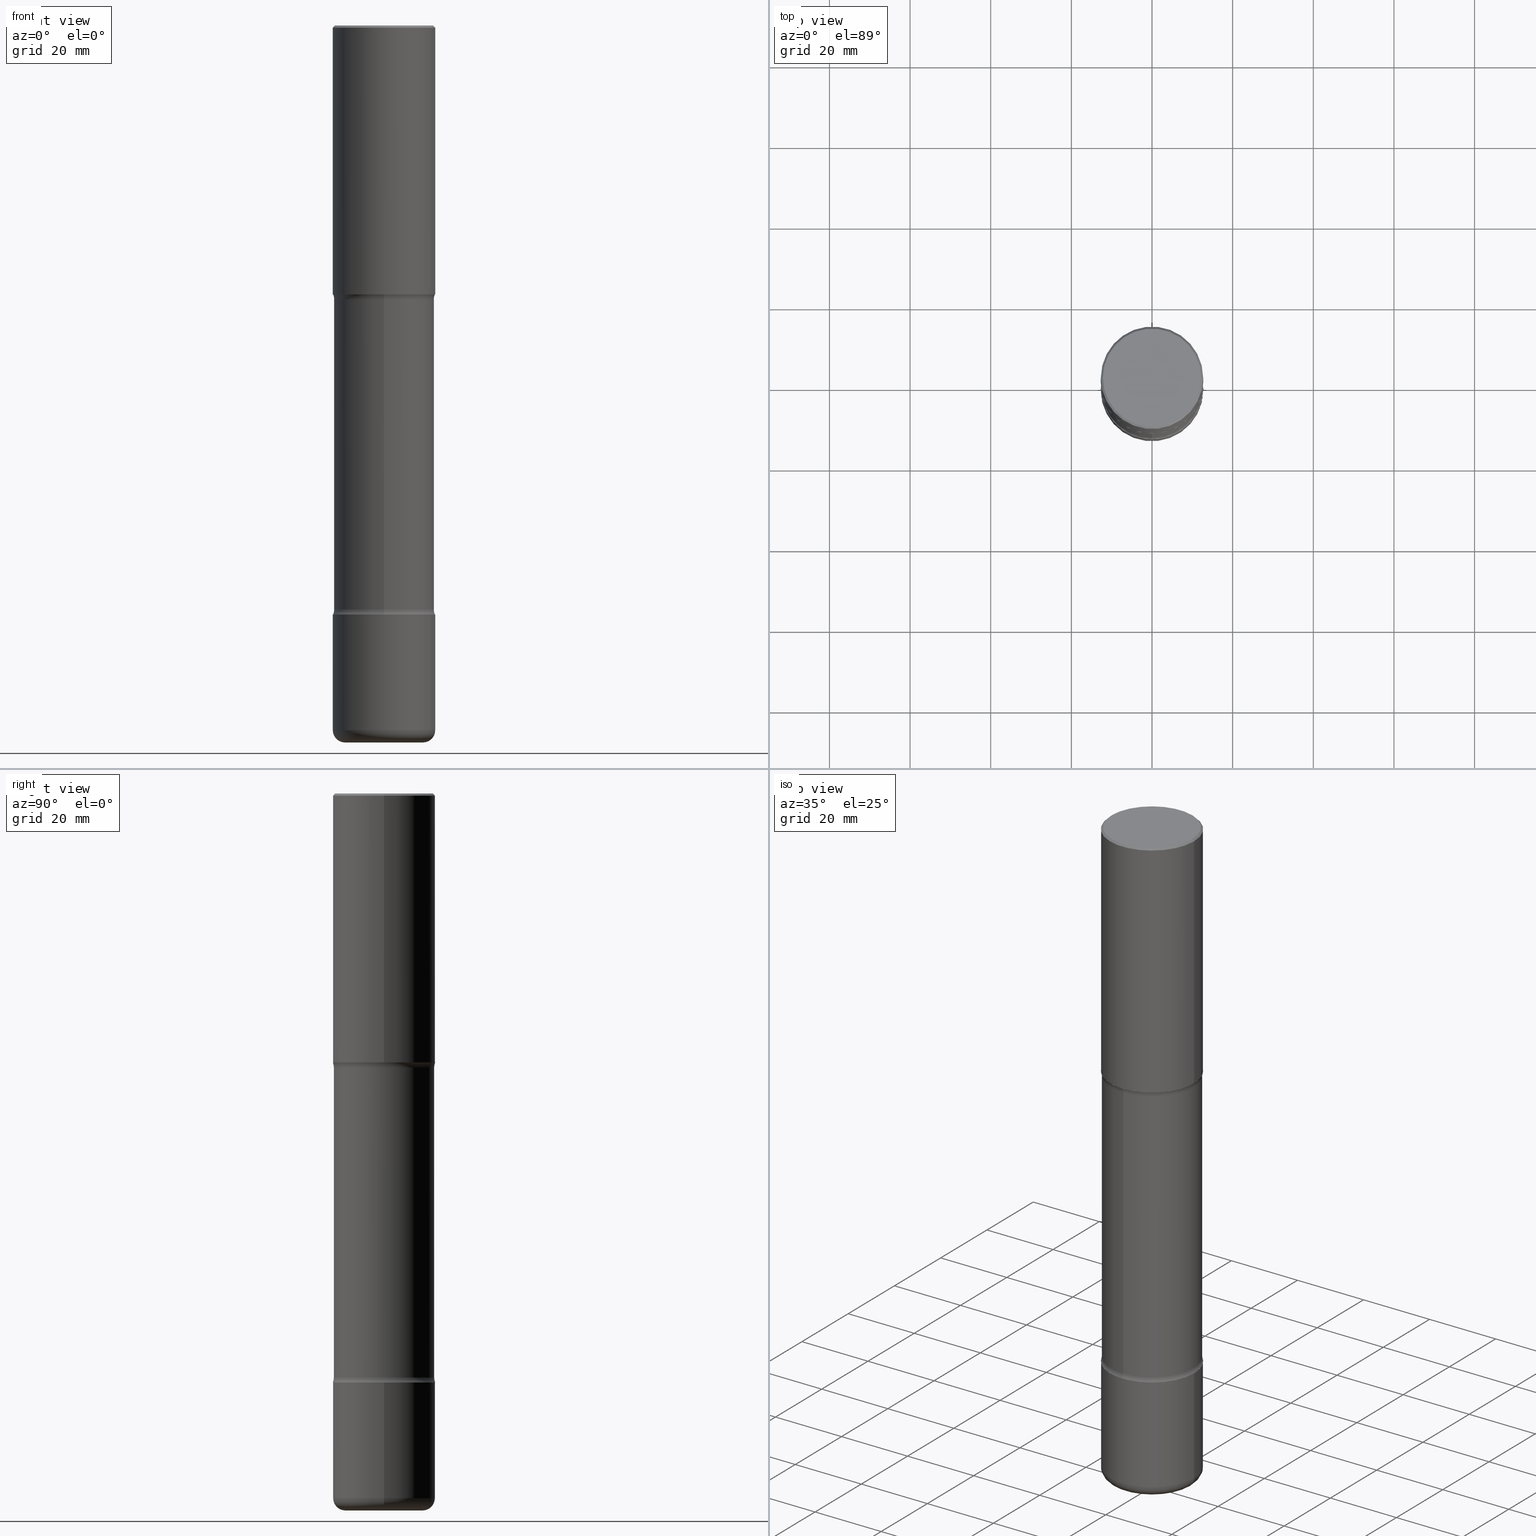
[diagram: canonical four-view strip — front | top / right | iso, engineering-drawing reading convention]
A machine part, canonical four-view strip (front | top / right | iso — engineering-drawing reading convention). The complete STEP part file that produces these views, byte-faithful:
ISO-10303-21;
HEADER;
FILE_DESCRIPTION (( 'STEP AP203' ),
    '1' );
FILE_NAME ('35816.STEP',
    '2024-03-01T23:34:35',
    ( '' ),
    ( '' ),
    'SwSTEP 2.0',
    'SolidWorks 2023',
    '' );
FILE_SCHEMA (( 'CONFIG_CONTROL_DESIGN' ));
ENDSEC;

DATA;
#1 = CALENDAR_DATE ( 2024, 1, 3 ) ;
#2 = DIRECTION ( 'NONE',  ( -1.000000000000000000, 6.982962677686266711E-15, 0.000000000000000000 ) ) ;
#3 = ORIENTED_EDGE ( 'NONE', *, *, #283, .F. ) ;
#4 = DATE_TIME_ROLE ( 'creation_date' ) ;
#5 = LINE ( 'NONE', #340, #444 ) ;
#6 = CIRCLE ( 'NONE', #361, 0.5000000000000005551 ) ;
#7 = AXIS2_PLACEMENT_3D ( 'NONE', #155, #455, #373 ) ;
#8 = DIRECTION ( 'NONE',  ( 1.000000000000000000, -6.982962677686267499E-15, 4.876176775795936353E-29 ) ) ;
#9 = ORIENTED_EDGE ( 'NONE', *, *, #106, .T. ) ;
#10 = PERSON_AND_ORGANIZATION_ROLE ( 'design_supplier' ) ;
#11 = CARTESIAN_POINT ( 'NONE',  ( 4.890937612370299433E-31, -6.982962677686328587E-17, -0.02000000000000010797 ) ) ;
#12 = EDGE_CURVE ( 'NONE', #496, #92, #392, .T. ) ;
#13 = DIRECTION ( 'NONE',  ( 1.000000000000000000, -6.982962677686274599E-15, 0.000000000000000000 ) ) ;
#14 = AXIS2_PLACEMENT_3D ( 'NONE', #218, #466, #2 ) ;
#15 = ORIENTED_EDGE ( 'NONE', *, *, #215, .F. ) ;
#16 = SECURITY_CLASSIFICATION ( '', '', #295 ) ;
#17 = CARTESIAN_POINT ( 'NONE',  ( 1.394164262042360481E-28, -1.990497074381578997E-14, -5.701010205144338094 ) ) ;
#18 = CARTESIAN_POINT ( 'NONE',  ( 0.5000000000000000000, -3.500078625662629079E-15, -0.02000000000000010797 ) ) ;
#19 = DIRECTION ( 'NONE',  ( 7.105427357601001859E-15, 1.000000000000000000, -3.491481338843145583E-15 ) ) ;
#20 = ORIENTED_EDGE ( 'NONE', *, *, #66, .F. ) ;
#21 = ADVANCED_FACE ( 'NONE', ( #134 ), #168, .F. ) ;
#22 = CARTESIAN_POINT ( 'NONE',  ( 0.3800000000000005040, -2.667491742876163160E-14, -6.880000000000000782 ) ) ;
#23 = ORIENTED_EDGE ( 'NONE', *, *, #271, .F. ) ;
#24 = EDGE_LOOP ( 'NONE', ( #328, #399, #208, #542 ) ) ;
#25 = DIRECTION ( 'NONE',  ( -1.000000000000000000, 6.982962677686265922E-15, -4.876176775795935793E-29 ) ) ;
#26 = ADVANCED_FACE ( 'NONE', ( #308 ), #172, .F. ) ;
#27 = ORIENTED_EDGE ( 'NONE', *, *, #371, .F. ) ;
#28 = DIRECTION ( 'NONE',  ( -1.000000000000000000, 6.982962677686265922E-15, -4.876176775795935793E-29 ) ) ;
#29 = AXIS2_PLACEMENT_3D ( 'NONE', #114, #486, #275 ) ;
#30 = APPROVAL ( #344, 'UNSPECIFIED' ) ;
#31 = PRODUCT_DEFINITION_FORMATION_WITH_SPECIFIED_SOURCE ( 'ANY', '', #285, .NOT_KNOWN. ) ;
#32 = CARTESIAN_POINT ( 'NONE',  ( 6.300703724116049191E-29, -9.677666468203598037E-15, -2.673989794855665014 ) ) ;
#33 = DIRECTION ( 'NONE',  ( -6.982962677686265922E-15, -1.000000000000000000, 3.382207419096575054E-15 ) ) ;
#34 = AXIS2_PLACEMENT_3D ( 'NONE', #147, #410, #33 ) ;
#35 = DIRECTION ( 'NONE',  ( -2.438088387897960049E-29, 3.491481338843145188E-15, 1.000000000000000000 ) ) ;
#36 = AXIS2_PLACEMENT_3D ( 'NONE', #362, #108, #525 ) ;
#37 = VERTEX_POINT ( 'NONE', #442 ) ;
#38 = EDGE_CURVE ( 'NONE', #347, #426, #224, .T. ) ;
#39 = ORIENTED_EDGE ( 'NONE', *, *, #38, .T. ) ;
#40 = LINE ( 'NONE', #239, #154 ) ;
#41 = ADVANCED_FACE ( 'NONE', ( #485 ), #75, .F. ) ;
#42 = ORIENTED_EDGE ( 'NONE', *, *, #468, .F. ) ;
#43 = CC_DESIGN_PERSON_AND_ORGANIZATION_ASSIGNMENT ( #470, #427, ( #285 ) ) ;
#44 = AXIS2_PLACEMENT_3D ( 'NONE', #364, #535, #403 ) ;
#45 = CALENDAR_DATE ( 2024, 1, 3 ) ;
#46 = APPROVAL_PERSON_ORGANIZATION ( #380, #388, #424 ) ;
#47 = APPROVAL_DATE_TIME ( #213, #388 ) ;
#48 = DIRECTION ( 'NONE',  ( 2.521774376508615199E-29, -3.382207419096575054E-15, -1.000000000000000000 ) ) ;
#49 = ORIENTED_EDGE ( 'NONE', *, *, #488, .F. ) ;
#50 = EDGE_LOOP ( 'NONE', ( #412, #434, #331, #553 ) ) ;
#51 = COORDINATED_UNIVERSAL_TIME_OFFSET ( 5, 0, .BEHIND. ) ;
#52 = CARTESIAN_POINT ( 'NONE',  ( -0.5000000000000000000, 3.421651712066270057E-15, -0.02000000000000010797 ) ) ;
#53 = ORIENTED_EDGE ( 'NONE', *, *, #327, .F. ) ;
#54 = VERTEX_POINT ( 'NONE', #401 ) ;
#55 = DIRECTION ( 'NONE',  ( -2.445468806185136597E-29, 3.491481338843145583E-15, 1.000000000000000000 ) ) ;
#56 = AXIS2_PLACEMENT_3D ( 'NONE', #508, #136, #256 ) ;
#57 = APPLICATION_PROTOCOL_DEFINITION ( 'international standard', 'config_control_design', 1994, #447 ) ;
#58 = DIRECTION ( 'NONE',  ( 6.982962677686266711E-15, 1.000000000000000000, -4.460159989655937807E-15 ) ) ;
#59 = FACE_OUTER_BOUND ( 'NONE', #50, .T. ) ;
#60 = DIRECTION ( 'NONE',  ( 2.521774376508615199E-29, -3.382207419096575054E-15, -1.000000000000000000 ) ) ;
#61 = VERTEX_POINT ( 'NONE', #149 ) ;
#62 = APPROVAL ( #393, 'UNSPECIFIED' ) ;
#63 = DIRECTION ( 'NONE',  ( -2.445468806185136597E-29, 3.491481338843145583E-15, 1.000000000000000000 ) ) ;
#64 = AXIS2_PLACEMENT_3D ( 'NONE', #219, #477, #527 ) ;
#65 = DIRECTION ( 'NONE',  ( 6.982962677686265922E-15, 1.000000000000000000, -3.382207419096575054E-15 ) ) ;
#66 = EDGE_CURVE ( 'NONE', #317, #92, #76, .T. ) ;
#67 = ORIENTED_EDGE ( 'NONE', *, *, #382, .F. ) ;
#68 = CARTESIAN_POINT ( 'NONE',  ( 0.5000000000000002220, -3.491481338843135327E-15, 2.438088387897969298E-29 ) ) ;
#69 = CARTESIAN_POINT ( 'NONE',  ( -0.3800000000000005040, -2.110449245422699151E-14, -7.000000000000000888 ) ) ;
#70 = CIRCLE ( 'NONE', #240, 0.4799999999999999267 ) ;
#71 = APPROVAL_PERSON_ORGANIZATION ( #93, #62, #217 ) ;
#72 = VECTOR ( 'NONE', #528, 39.37007874015748143 ) ;
#73 = FACE_OUTER_BOUND ( 'NONE', #339, .T. ) ;
#74 = ADVANCED_FACE ( 'NONE', ( #532 ), #110, .F. ) ;
#75 = PLANE ( 'NONE',  #548 ) ;
#76 = CIRCLE ( 'NONE', #164, 0.1199999999999998845 ) ;
#77 = PLANE ( 'NONE',  #179 ) ;
#78 = CIRCLE ( 'NONE', #188, 0.5000000000000004441 ) ;
#79 = CC_DESIGN_PERSON_AND_ORGANIZATION_ASSIGNMENT ( #255, #518, ( #396 ) ) ;
#80 = EDGE_LOOP ( 'NONE', ( #27, #480, #269, #180 ) ) ;
#81 = ADVANCED_FACE ( 'NONE', ( #236 ), #526, .T. ) ;
#82 = DIRECTION ( 'NONE',  ( 6.982962677686266711E-15, 1.000000000000000000, -4.370956789862817205E-15 ) ) ;
#83 = CARTESIAN_POINT ( 'NONE',  ( 0.000000000000000000, 0.000000000000000000, 0.000000000000000000 ) ) ;
#84 = DATE_AND_TIME ( #520, #556 ) ;
#85 = CONICAL_SURFACE ( 'NONE', #14, 0.5000000000000000000, 0.7853981633974467247 ) ;
#86 = DATE_TIME_ROLE ( 'classification_date' ) ;
#87 = CYLINDRICAL_SURFACE ( 'NONE', #248, 0.4900000000000002132 ) ;
#88 = EDGE_CURVE ( 'NONE', #61, #416, #491, .T. ) ;
#89 = ORIENTED_EDGE ( 'NONE', *, *, #349, .F. ) ;
#90 = VERTEX_POINT ( 'NONE', #121 ) ;
#91 = DIRECTION ( 'NONE',  ( -0.7071067811865464625, 2.468850131082245228E-15, -0.7071067811865486830 ) ) ;
#92 = VERTEX_POINT ( 'NONE', #163 ) ;
#93 = PERSON_AND_ORGANIZATION ( #95, #250 ) ;
#94 = CYLINDRICAL_SURFACE ( 'NONE', #298, 0.5000000000000005551 ) ;
#95 = PERSON ( 'UNSPECIFIED', 'UNSPECIFIED', 'UNSPECIFIED', ('UNSPECIFIED'), ('UNSPECIFIED'), ('UNSPECIFIED') ) ;
#96 = VECTOR ( 'NONE', #289, 39.37007874015748143 ) ;
#97 = CARTESIAN_POINT ( 'NONE',  ( -0.5000000000000004441, -1.849599097599396794E-14, -5.750000000000001776 ) ) ;
#98 = EDGE_CURVE ( 'NONE', #171, #116, #78, .T. ) ;
#99 = DIRECTION ( 'NONE',  ( 2.445468806185136597E-29, -3.491481338843145583E-15, -1.000000000000000000 ) ) ;
#100 = VERTEX_POINT ( 'NONE', #544 ) ;
#101 = PLANE ( 'NONE',  #233 ) ;
#102 = ORIENTED_EDGE ( 'NONE', *, *, #478, .F. ) ;
#103 = FACE_OUTER_BOUND ( 'NONE', #197, .T. ) ;
#104 = CIRCLE ( 'NONE', #415, 0.1249999999999999584 ) ;
#105 = ORIENTED_EDGE ( 'NONE', *, *, #159, .F. ) ;
#106 = EDGE_CURVE ( 'NONE', #416, #426, #438, .T. ) ;
#107 = ADVANCED_FACE ( 'NONE', ( #280 ), #494, .T. ) ;
#108 = DIRECTION ( 'NONE',  ( -2.445468806185136597E-29, 3.491481338843145583E-15, 1.000000000000000000 ) ) ;
#109 = AXIS2_PLACEMENT_3D ( 'NONE', #341, #510, #467 ) ;
#110 = PLANE ( 'NONE',  #34 ) ;
#111 = CARTESIAN_POINT ( 'NONE',  ( 1.682482538655374212E-28, -2.402139161124084521E-14, -6.880000000000000782 ) ) ;
#112 = DIRECTION ( 'NONE',  ( 6.982962677686265922E-15, 1.000000000000000000, -3.382207419096575054E-15 ) ) ;
#113 = ORIENTED_EDGE ( 'NONE', *, *, #478, .T. ) ;
#114 = CARTESIAN_POINT ( 'NONE',  ( 1.682482538655374212E-28, -2.402139161124084521E-14, -6.880000000000000782 ) ) ;
#115 = VECTOR ( 'NONE', #307, 39.37007874015748143 ) ;
#116 = VERTEX_POINT ( 'NONE', #97 ) ;
#117 = CARTESIAN_POINT ( 'NONE',  ( 1.711828164329595618E-28, -2.444036937190202184E-14, -7.000000000000000888 ) ) ;
#118 =( LENGTH_UNIT ( ) NAMED_UNIT ( * ) SI_UNIT ( $, .METRE. ) );
#119 = CIRCLE ( 'NONE', #497, 0.5000000000000004441 ) ;
#120 = CIRCLE ( 'NONE', #140, 0.4900000000000003242 ) ;
#121 = CARTESIAN_POINT ( 'NONE',  ( -0.4799999999999999267, 3.386736898677838802E-15, 1.707404996037808406E-17 ) ) ;
#122 = DIRECTION ( 'NONE',  ( -2.445468806185136597E-29, 3.491481338843145583E-15, 1.000000000000000000 ) ) ;
#123 = DIRECTION ( 'NONE',  ( 1.000000000000000000, -6.982962677686264344E-15, 0.000000000000000000 ) ) ;
#124 = PERSON_AND_ORGANIZATION_ROLE ( 'classification_officer' ) ;
#125 = CARTESIAN_POINT ( 'NONE',  ( 1.406144563556453992E-28, -2.007601769834809568E-14, -5.750000000000001776 ) ) ;
#126 = MANIFOLD_SOLID_BREP ( 'Body-Move/Copy2[1]', #402 ) ;
#127 = CIRCLE ( 'NONE', #212, 0.4900000000000002132 ) ;
#128 = CC_DESIGN_SECURITY_CLASSIFICATION ( #16, ( #31 ) ) ;
#129 = DIRECTION ( 'NONE',  ( 2.521774376508615199E-29, -3.382207419096575054E-15, -1.000000000000000000 ) ) ;
#130 = ORIENTED_EDGE ( 'NONE', *, *, #367, .F. ) ;
#131 = CC_DESIGN_PERSON_AND_ORGANIZATION_ASSIGNMENT ( #202, #124, ( #16 ) ) ;
#132 = CALENDAR_DATE ( 2024, 1, 3 ) ;
#133 = FACE_OUTER_BOUND ( 'NONE', #137, .T. ) ;
#134 = FACE_OUTER_BOUND ( 'NONE', #482, .T. ) ;
#135 = ORIENTED_EDGE ( 'NONE', *, *, #88, .T. ) ;
#136 = DIRECTION ( 'NONE',  ( -2.445468806185136597E-29, 3.491481338843145583E-15, 1.000000000000000000 ) ) ;
#137 = EDGE_LOOP ( 'NONE', ( #228, #15, #238, #9 ) ) ;
#138 = CIRCLE ( 'NONE', #422, 0.5000000000000000000 ) ;
#139 = DIRECTION ( 'NONE',  ( 6.982962677686266711E-15, 1.000000000000000000, -4.460159989655937807E-15 ) ) ;
#140 = AXIS2_PLACEMENT_3D ( 'NONE', #162, #368, #454 ) ;
#141 = CARTESIAN_POINT ( 'NONE',  ( 6.180900708975112969E-29, -9.506619513671289169E-15, -2.625000000000000000 ) ) ;
#142 = DIRECTION ( 'NONE',  ( 6.982962677686265922E-15, 1.000000000000000000, -3.382207419096575054E-15 ) ) ;
#143 = FACE_OUTER_BOUND ( 'NONE', #419, .T. ) ;
#144 = AXIS2_PLACEMENT_3D ( 'NONE', #519, #301, #338 ) ;
#145 = LOCAL_TIME ( 18, 34, 35.00000000000000000, #209 ) ;
#146 = LINE ( 'NONE', #550, #96 ) ;
#147 = CARTESIAN_POINT ( 'NONE',  ( 5.286305048364502604E-29, -3.264251846920369505E-14, -5.750000000000000888 ) ) ;
#148 = CLOSED_SHELL ( 'NONE', ( #456, #185, #205, #41, #539, #153 ) ) ;
#149 = CARTESIAN_POINT ( 'NONE',  ( -0.5000000000000004441, -1.064770391819553504E-15, -2.625000000000000000 ) ) ;
#150 = EDGE_CURVE ( 'NONE', #37, #475, #449, .T. ) ;
#151 = LINE ( 'NONE', #68, #115 ) ;
#152 = CYLINDRICAL_SURFACE ( 'NONE', #316, 0.5000000000000005551 ) ;
#153 = ADVANCED_FACE ( 'NONE', ( #216 ), #433, .T. ) ;
#154 = VECTOR ( 'NONE', #366, 39.37007874015748143 ) ;
#155 = CARTESIAN_POINT ( 'NONE',  ( 6.419355616235983567E-29, -9.165138514463256612E-15, -2.625000000000000000 ) ) ;
#156 = AXIS2_PLACEMENT_3D ( 'NONE', #257, #385, #515 ) ;
#157 = DIRECTION ( 'NONE',  ( -2.445468806185136597E-29, 3.491481338843145583E-15, 1.000000000000000000 ) ) ;
#158 =( NAMED_UNIT ( * ) SI_UNIT ( $, .STERADIAN. ) SOLID_ANGLE_UNIT ( ) );
#159 = EDGE_CURVE ( 'NONE', #426, #416, #138, .T. ) ;
#160 = VERTEX_POINT ( 'NONE', #176 ) ;
#161 = ORIENTED_EDGE ( 'NONE', *, *, #227, .T. ) ;
#162 = CARTESIAN_POINT ( 'NONE',  ( 6.304441918352541244E-29, -9.672313161292138193E-15, -2.673989794855665014 ) ) ;
#163 = CARTESIAN_POINT ( 'NONE',  ( -0.5000000000000004441, -2.046867793244033797E-14, -6.880000000000000782 ) ) ;
#164 = AXIS2_PLACEMENT_3D ( 'NONE', #321, #19, #453 ) ;
#165 = APPROVAL_ROLE ( '' ) ;
#166 = CARTESIAN_POINT ( 'NONE',  ( 0.000000000000000000, 0.000000000000000000, 0.000000000000000000 ) ) ;
#167 = DIRECTION ( 'NONE',  ( 6.982962677686266711E-15, 1.000000000000000000, -4.460159989655937807E-15 ) ) ;
#168 = PLANE ( 'NONE',  #109 ) ;
#169 = AXIS2_PLACEMENT_3D ( 'NONE', #204, #170, #8 ) ;
#170 = DIRECTION ( 'NONE',  ( -2.445468806185136597E-29, 3.491481338843145583E-15, 1.000000000000000000 ) ) ;
#171 = VERTEX_POINT ( 'NONE', #348 ) ;
#172 = TOROIDAL_SURFACE ( 'NONE', #346, 0.6150000000000003242, 0.1249999999999999584 ) ;
#173 = DIRECTION ( 'NONE',  ( 1.000000000000000000, -6.982962677686266711E-15, 0.000000000000000000 ) ) ;
#174 = VERTEX_POINT ( 'NONE', #474 ) ;
#175 = DATE_AND_TIME ( #1, #189 ) ;
#176 = CARTESIAN_POINT ( 'NONE',  ( 3.421651712066335533E-15, 0.4899999999999906097, -2.673989794855666347 ) ) ;
#177 = AXIS2_PLACEMENT_3D ( 'NONE', #17, #182, #142 ) ;
#178 = DIRECTION ( 'NONE',  ( 1.000000000000000000, -6.982962677686270655E-15, 0.000000000000000000 ) ) ;
#179 = AXIS2_PLACEMENT_3D ( 'NONE', #411, #35, #193 ) ;
#180 = ORIENTED_EDGE ( 'NONE', *, *, #332, .F. ) ;
#181 = ADVANCED_FACE ( 'NONE', ( #439 ), #345, .F. ) ;
#182 = DIRECTION ( 'NONE',  ( 2.521774376508615199E-29, -3.382207419096575054E-15, -1.000000000000000000 ) ) ;
#183 = DIRECTION ( 'NONE',  ( -2.445468806185136597E-29, 3.491481338843145583E-15, 1.000000000000000000 ) ) ;
#184 = DIRECTION ( 'NONE',  ( 2.521774376508615199E-29, -3.382207419096575054E-15, -1.000000000000000000 ) ) ;
#185 = ADVANCED_FACE ( 'NONE', ( #305 ), #85, .T. ) ;
#186 = AXIS2_PLACEMENT_3D ( 'NONE', #476, #310, #58 ) ;
#187 = EDGE_CURVE ( 'NONE', #90, #416, #387, .T. ) ;
#188 = AXIS2_PLACEMENT_3D ( 'NONE', #203, #557, #123 ) ;
#189 = LOCAL_TIME ( 18, 34, 35.00000000000000000, #432 ) ;
#190 = DIRECTION ( 'NONE',  ( 2.438088387897960049E-29, -3.491481338843145188E-15, -1.000000000000000000 ) ) ;
#191 = CARTESIAN_POINT ( 'NONE',  ( 4.890937612370299433E-31, -6.982962677686328587E-17, -0.02000000000000010797 ) ) ;
#192 = CARTESIAN_POINT ( 'NONE',  ( 0.000000000000000000, 0.000000000000000000, 0.000000000000000000 ) ) ;
#193 = DIRECTION ( 'NONE',  ( 1.000000000000000000, -6.982962677686265922E-15, 4.876176775795935793E-29 ) ) ;
#194 = AXIS2_PLACEMENT_3D ( 'NONE', #351, #384, #463 ) ;
#195 = EDGE_LOOP ( 'NONE', ( #230, #374 ) ) ;
#196 = CC_DESIGN_DATE_AND_TIME_ASSIGNMENT ( #175, #86, ( #16 ) ) ;
#197 = EDGE_LOOP ( 'NONE', ( #293, #135, #105, #198 ) ) ;
#198 = ORIENTED_EDGE ( 'NONE', *, *, #437, .F. ) ;
#199 = CARTESIAN_POINT ( 'NONE',  ( 0.5000000000000004441, -2.751287295008398487E-14, -6.880000000000000782 ) ) ;
#200 = CIRCLE ( 'NONE', #499, 0.5000000000000005551 ) ;
#201 = AXIS2_PLACEMENT_3D ( 'NONE', #83, #375, #335 ) ;
#202 = PERSON_AND_ORGANIZATION ( #95, #250 ) ;
#203 = CARTESIAN_POINT ( 'NONE',  ( 1.406144563556453992E-28, -2.007601769834809568E-14, -5.750000000000001776 ) ) ;
#204 = CARTESIAN_POINT ( 'NONE',  ( 0.000000000000000000, 0.000000000000000000, 0.000000000000000000 ) ) ;
#205 = ADVANCED_FACE ( 'NONE', ( #133 ), #472, .T. ) ;
#206 = DATE_AND_TIME ( #45, #225 ) ;
#207 = DIRECTION ( 'NONE',  ( -2.445468806185136877E-29, 3.491481338843145188E-15, 1.000000000000000000 ) ) ;
#208 = ORIENTED_EDGE ( 'NONE', *, *, #271, .T. ) ;
#209 = COORDINATED_UNIVERSAL_TIME_OFFSET ( 5, 0, .BEHIND. ) ;
#210 = FACE_OUTER_BOUND ( 'NONE', #365, .T. ) ;
#211 = EDGE_LOOP ( 'NONE', ( #53, #407, #370, #270 ) ) ;
#212 = AXIS2_PLACEMENT_3D ( 'NONE', #425, #48, #167 ) ;
#213 = DATE_AND_TIME ( #132, #145 ) ;
#214 = LOCAL_TIME ( 18, 34, 35.00000000000000000, #51 ) ;
#215 = EDGE_CURVE ( 'NONE', #90, #347, #325, .T. ) ;
#216 = FACE_OUTER_BOUND ( 'NONE', #465, .T. ) ;
#217 = APPROVAL_ROLE ( '' ) ;
#218 = CARTESIAN_POINT ( 'NONE',  ( 4.890937612370299433E-31, -6.982962677686328587E-17, -0.02000000000000010797 ) ) ;
#219 = CARTESIAN_POINT ( 'NONE',  ( 4.294522046777118082E-15, 0.6149999999999905542, -2.673989794855666791 ) ) ;
#220 = VERTEX_POINT ( 'NONE', #264 ) ;
#221 = ORIENTED_EDGE ( 'NONE', *, *, #234, .F. ) ;
#222 = CIRCLE ( 'NONE', #194, 0.4900000000000002132 ) ;
#223 = DIRECTION ( 'NONE',  ( 6.982962677686266711E-15, 1.000000000000000000, -3.278217592397112312E-15 ) ) ;
#224 = LINE ( 'NONE', #18, #72 ) ;
#225 = LOCAL_TIME ( 18, 34, 35.00000000000000000, #291 ) ;
#226 = DIRECTION ( 'NONE',  ( 2.438088387897960049E-29, -3.491481338843145188E-15, -1.000000000000000000 ) ) ;
#227 = EDGE_CURVE ( 'NONE', #496, #171, #381, .T. ) ;
#228 = ORIENTED_EDGE ( 'NONE', *, *, #38, .F. ) ;
#229 = DIRECTION ( 'NONE',  ( 1.000000000000000000, -6.982962677686266711E-15, 4.876431871984414276E-29 ) ) ;
#230 = ORIENTED_EDGE ( 'NONE', *, *, #150, .T. ) ;
#231 = DIRECTION ( 'NONE',  ( 6.860497997771532351E-15, 1.000000000000000000, 0.000000000000000000 ) ) ;
#232 = CARTESIAN_POINT ( 'NONE',  ( 1.394164262042360481E-28, -1.990497074381578997E-14, -5.701010205144338094 ) ) ;
#233 = AXIS2_PLACEMENT_3D ( 'NONE', #355, #190, #25 ) ;
#234 = EDGE_CURVE ( 'NONE', #549, #174, #222, .T. ) ;
#235 = DIRECTION ( 'NONE',  ( 1.000000000000000000, -6.982962677686264344E-15, 0.000000000000000000 ) ) ;
#236 = FACE_OUTER_BOUND ( 'NONE', #500, .T. ) ;
#237 = FACE_OUTER_BOUND ( 'NONE', #80, .T. ) ;
#238 = ORIENTED_EDGE ( 'NONE', *, *, #187, .T. ) ;
#239 = CARTESIAN_POINT ( 'NONE',  ( -3.361644018907879661E-15, -0.4900000000000245270, -6.999999999999998224 ) ) ;
#240 = AXIS2_PLACEMENT_3D ( 'NONE', #406, #315, #229 ) ;
#241 = CIRCLE ( 'NONE', #7, 0.5000000000000004441 ) ;
#242 = ORIENTED_EDGE ( 'NONE', *, *, #227, .F. ) ;
#243 = DIRECTION ( 'NONE',  ( 6.982962677686265922E-15, 1.000000000000000000, -3.382207419096575054E-15 ) ) ;
#244 = ADVANCED_FACE ( 'NONE', ( #210 ), #94, .T. ) ;
#245 = APPROVAL_DATE_TIME ( #84, #30 ) ;
#246 = ADVANCED_FACE ( 'NONE', ( #303 ), #87, .T. ) ;
#247 = ORIENTED_EDGE ( 'NONE', *, *, #504, .T. ) ;
#248 = AXIS2_PLACEMENT_3D ( 'NONE', #560, #513, #139 ) ;
#249 = EDGE_CURVE ( 'NONE', #37, #549, #533, .T. ) ;
#250 = ORGANIZATION ( 'UNSPECIFIED', 'UNSPECIFIED', '' ) ;
#251 = APPROVAL_STATUS ( 'not_yet_approved' ) ;
#252 = AXIS2_PLACEMENT_3D ( 'NONE', #191, #329, #323 ) ;
#253 = DIRECTION ( 'NONE',  ( 1.000000000000000000, -6.860497997771530774E-15, 4.842137099184622167E-29 ) ) ;
#254 = ORIENTED_EDGE ( 'NONE', *, *, #468, .T. ) ;
#255 = PERSON_AND_ORGANIZATION ( #95, #250 ) ;
#256 = DIRECTION ( 'NONE',  ( 1.000000000000000000, -6.982962677686266711E-15, 4.876431871984414276E-29 ) ) ;
#257 = CARTESIAN_POINT ( 'NONE',  ( 1.682482538655374212E-28, -2.402139161124084521E-14, -6.880000000000000782 ) ) ;
#258 = CALENDAR_DATE ( 2024, 1, 3 ) ;
#259 = DIRECTION ( 'NONE',  ( 2.521774376508615199E-29, -3.382207419096575054E-15, -1.000000000000000000 ) ) ;
#260 = CC_DESIGN_DATE_AND_TIME_ASSIGNMENT ( #386, #4, ( #396 ) ) ;
#261 = AXIS2_PLACEMENT_3D ( 'NONE', #471, #99, #394 ) ;
#262 = TOROIDAL_SURFACE ( 'NONE', #177, 0.6150000000000003242, 0.1249999999999999584 ) ;
#263 = CARTESIAN_POINT ( 'NONE',  ( -4.219206268629429970E-15, -0.6150000000000099831, -2.673989794855662794 ) ) ;
#264 = CARTESIAN_POINT ( 'NONE',  ( -3.430248998885707800E-15, -0.5000000000000102141, -2.624999999999998224 ) ) ;
#265 = EDGE_LOOP ( 'NONE', ( #20, #247, #266, #130 ) ) ;
#266 = ORIENTED_EDGE ( 'NONE', *, *, #360, .T. ) ;
#267 = CARTESIAN_POINT ( 'NONE',  ( 6.180900708975112969E-29, -9.506619513671289169E-15, -2.625000000000000000 ) ) ;
#268 = EDGE_CURVE ( 'NONE', #54, #220, #343, .T. ) ;
#269 = ORIENTED_EDGE ( 'NONE', *, *, #319, .T. ) ;
#270 = ORIENTED_EDGE ( 'NONE', *, *, #234, .T. ) ;
#271 = EDGE_CURVE ( 'NONE', #174, #549, #127, .T. ) ;
#272 = CIRCLE ( 'NONE', #64, 0.1250000000000000278 ) ;
#273 = DIRECTION ( 'NONE',  ( 1.000000000000000000, -6.982962677686268288E-15, 0.000000000000000000 ) ) ;
#274 = DIRECTION ( 'NONE',  ( -6.982962677686266711E-15, -1.000000000000000000, 3.491481338843145583E-15 ) ) ;
#275 = DIRECTION ( 'NONE',  ( 1.000000000000000000, -6.982962677686265133E-15, 4.883557194083111780E-29 ) ) ;
#276 = PRODUCT_RELATED_PRODUCT_CATEGORY ( 'detail', '', ( #285 ) ) ;
#277 = DIRECTION ( 'NONE',  ( 2.521774376508615199E-29, -3.382207419096575054E-15, -1.000000000000000000 ) ) ;
#278 = AXIS2_PLACEMENT_3D ( 'NONE', #22, #274, #13 ) ;
#279 = CC_DESIGN_APPROVAL ( #62, ( #396 ) ) ;
#280 = FACE_OUTER_BOUND ( 'NONE', #395, .T. ) ;
#281 = DIRECTION ( 'NONE',  ( 2.521774376508615199E-29, -3.382207419096575054E-15, -1.000000000000000000 ) ) ;
#282 = CARTESIAN_POINT ( 'NONE',  ( 1.682482538655374212E-28, -2.402139161124084521E-14, -6.880000000000000782 ) ) ;
#283 = EDGE_CURVE ( 'NONE', #160, #549, #5, .T. ) ;
#284 = CARTESIAN_POINT ( 'NONE',  ( 3.351822085289407153E-15, 0.4799999999999999267, -1.667374017664508837E-15 ) ) ;
#285 = PRODUCT ( '35816', '35816', '', ( #498 ) ) ;
#286 = CARTESIAN_POINT ( 'NONE',  ( 6.300703724116049191E-29, -9.677666468203598037E-15, -2.673989794855665014 ) ) ;
#287 = DIRECTION ( 'NONE',  ( 1.000000000000000000, -6.982962677686265133E-15, 4.883557194083111780E-29 ) ) ;
#288 = ORIENTED_EDGE ( 'NONE', *, *, #215, .T. ) ;
#289 = DIRECTION ( 'NONE',  ( -2.445468806185136877E-29, 3.491481338843145188E-15, 1.000000000000000000 ) ) ;
#290 = CIRCLE ( 'NONE', #36, 0.3800000000000005040 ) ;
#291 = COORDINATED_UNIVERSAL_TIME_OFFSET ( 5, 0, .BEHIND. ) ;
#292 = ADVANCED_FACE ( 'NONE', ( #59 ), #509, .F. ) ;
#293 = ORIENTED_EDGE ( 'NONE', *, *, #382, .T. ) ;
#294 = VERTEX_POINT ( 'NONE', #408 ) ;
#295 = SECURITY_CLASSIFICATION_LEVEL ( 'unclassified' ) ;
#296 = CARTESIAN_POINT ( 'NONE',  ( 0.5000000000000005551, -3.491481338843137300E-15, 2.438088387897970699E-29 ) ) ;
#297 = ORIENTED_EDGE ( 'NONE', *, *, #12, .T. ) ;
#298 = AXIS2_PLACEMENT_3D ( 'NONE', #166, #55, #521 ) ;
#299 = AXIS2_PLACEMENT_3D ( 'NONE', #490, #122, #235 ) ;
#300 = CARTESIAN_POINT ( 'NONE',  ( 4.294522046777194602E-15, 0.6149999999999803402, -5.701010205144339871 ) ) ;
#301 = DIRECTION ( 'NONE',  ( 2.521774376508614919E-29, -3.382207419096575054E-15, -1.000000000000000000 ) ) ;
#302 = ORIENTED_EDGE ( 'NONE', *, *, #488, .T. ) ;
#303 = FACE_OUTER_BOUND ( 'NONE', #440, .T. ) ;
#304 = AXIS2_PLACEMENT_3D ( 'NONE', #125, #259, #469 ) ;
#305 = FACE_OUTER_BOUND ( 'NONE', #313, .T. ) ;
#306 = ORIENTED_EDGE ( 'NONE', *, *, #559, .T. ) ;
#307 = DIRECTION ( 'NONE',  ( -2.445468806185136877E-29, 3.491481338843145188E-15, 1.000000000000000000 ) ) ;
#308 = FACE_OUTER_BOUND ( 'NONE', #211, .T. ) ;
#309 = ORIENTED_EDGE ( 'NONE', *, *, #159, .T. ) ;
#310 = DIRECTION ( 'NONE',  ( 2.521774376508615199E-29, -3.382207419096575054E-15, -1.000000000000000000 ) ) ;
#311 = FACE_OUTER_BOUND ( 'NONE', #265, .T. ) ;
#312 = ORIENTED_EDGE ( 'NONE', *, *, #349, .T. ) ;
#313 = EDGE_LOOP ( 'NONE', ( #502, #39, #309, #537 ) ) ;
#314 = CIRCLE ( 'NONE', #44, 0.4900000000000003242 ) ;
#315 = DIRECTION ( 'NONE',  ( -2.445468806185136597E-29, 3.491481338843145583E-15, 1.000000000000000000 ) ) ;
#316 = AXIS2_PLACEMENT_3D ( 'NONE', #192, #330, #493 ) ;
#317 = VERTEX_POINT ( 'NONE', #69 ) ;
#318 = ADVANCED_FACE ( 'NONE', ( #143 ), #101, .T. ) ;
#319 = EDGE_CURVE ( 'NONE', #220, #529, #554, .T. ) ;
#320 = CARTESIAN_POINT ( 'NONE',  ( 0.4799999999999999267, -3.396558832296482099E-15, 1.707404996042524007E-17 ) ) ;
#321 = CARTESIAN_POINT ( 'NONE',  ( -0.3800000000000005040, -2.132132921535246210E-14, -6.880000000000000782 ) ) ;
#322 = CARTESIAN_POINT ( 'NONE',  ( -4.219206268629354239E-15, -0.6150000000000201972, -5.701010205144335430 ) ) ;
#323 = DIRECTION ( 'NONE',  ( 1.000000000000000000, -6.982962677686266711E-15, 0.000000000000000000 ) ) ;
#324 = CARTESIAN_POINT ( 'NONE',  ( -3.430248998885628125E-15, -0.5000000000000204281, -5.750000000000000000 ) ) ;
#325 = CIRCLE ( 'NONE', #56, 0.4799999999999999267 ) ;
#326 = ORIENTED_EDGE ( 'NONE', *, *, #319, .F. ) ;
#327 = EDGE_CURVE ( 'NONE', #475, #174, #104, .T. ) ;
#328 = ORIENTED_EDGE ( 'NONE', *, *, #517, .F. ) ;
#329 = DIRECTION ( 'NONE',  ( -2.445468806185136597E-29, 3.491481338843145583E-15, 1.000000000000000000 ) ) ;
#330 = DIRECTION ( 'NONE',  ( -2.445468806185136597E-29, 3.491481338843145583E-15, 1.000000000000000000 ) ) ;
#331 = ORIENTED_EDGE ( 'NONE', *, *, #332, .T. ) ;
#332 = EDGE_CURVE ( 'NONE', #160, #529, #272, .T. ) ;
#333 = APPLICATION_PROTOCOL_DEFINITION ( 'international standard', 'config_control_design', 1994, #418 ) ;
#334 = AXIS2_PLACEMENT_3D ( 'NONE', #358, #531, #483 ) ;
#335 = DIRECTION ( 'NONE',  ( 1.000000000000000000, 0.000000000000000000, 0.000000000000000000 ) ) ;
#336 = EDGE_CURVE ( 'NONE', #347, #90, #70, .T. ) ;
#337 = PERSON_AND_ORGANIZATION ( #95, #250 ) ;
#338 = DIRECTION ( 'NONE',  ( 6.982962677686265922E-15, 1.000000000000000000, -3.382207419096575054E-15 ) ) ;
#339 = EDGE_LOOP ( 'NONE', ( #297, #254, #405, #242 ) ) ;
#340 = CARTESIAN_POINT ( 'NONE',  ( 3.421651712066444395E-15, 0.4899999999999758993, -7.000000000000002665 ) ) ;
#341 = CARTESIAN_POINT ( 'NONE',  ( 5.286305048364502604E-29, -3.264251846920369505E-14, -5.750000000000000888 ) ) ;
#342 = ORIENTED_EDGE ( 'NONE', *, *, #371, .T. ) ;
#343 = CIRCLE ( 'NONE', #435, 0.1250000000000000278 ) ;
#344 = APPROVAL_STATUS ( 'not_yet_approved' ) ;
#345 = PLANE ( 'NONE',  #144 ) ;
#346 = AXIS2_PLACEMENT_3D ( 'NONE', #232, #60, #112 ) ;
#347 = VERTEX_POINT ( 'NONE', #320 ) ;
#348 = CARTESIAN_POINT ( 'NONE',  ( 0.5000000000000004441, -2.356749903719122903E-14, -5.750000000000001776 ) ) ;
#349 = EDGE_CURVE ( 'NONE', #294, #317, #290, .T. ) ;
#350 = ORIENTED_EDGE ( 'NONE', *, *, #98, .T. ) ;
#351 = CARTESIAN_POINT ( 'NONE',  ( 1.393790442618711164E-28, -1.991032405072724823E-14, -5.701010205144338094 ) ) ;
#352 = CC_DESIGN_APPROVAL ( #388, ( #16 ) ) ;
#353 = CARTESIAN_POINT ( 'NONE',  ( -0.5000000000000000000, 3.421651712066270057E-15, -0.02000000000000010797 ) ) ;
#354 = ORIENTED_EDGE ( 'NONE', *, *, #336, .T. ) ;
#355 = CARTESIAN_POINT ( 'NONE',  ( 1.711828164329595618E-28, -2.444036937190202184E-14, -7.000000000000000888 ) ) ;
#356 = ORIENTED_EDGE ( 'NONE', *, *, #559, .F. ) ;
#357 = ORIENTED_EDGE ( 'NONE', *, *, #409, .F. ) ;
#358 = CARTESIAN_POINT ( 'NONE',  ( 0.000000000000000000, 0.000000000000000000, 0.000000000000000000 ) ) ;
#359 = EDGE_LOOP ( 'NONE', ( #288, #354 ) ) ;
#360 = EDGE_CURVE ( 'NONE', #294, #496, #377, .T. ) ;
#361 = AXIS2_PLACEMENT_3D ( 'NONE', #111, #183, #178 ) ;
#362 = CARTESIAN_POINT ( 'NONE',  ( 1.711828164329595618E-28, -2.444036937190202184E-14, -7.000000000000000888 ) ) ;
#363 = AXIS2_PLACEMENT_3D ( 'NONE', #117, #555, #451 ) ;
#364 = CARTESIAN_POINT ( 'NONE',  ( 6.304441918352541244E-29, -9.672313161292138193E-15, -2.673989794855665014 ) ) ;
#365 = EDGE_LOOP ( 'NONE', ( #42, #460, #161, #49 ) ) ;
#366 = DIRECTION ( 'NONE',  ( 2.521774376508615199E-29, -3.382207419096575054E-15, -1.000000000000000000 ) ) ;
#367 = EDGE_CURVE ( 'NONE', #92, #496, #6, .T. ) ;
#368 = DIRECTION ( 'NONE',  ( 2.521774376508615199E-29, -3.382207419096575054E-15, -1.000000000000000000 ) ) ;
#369 = APPROVAL_PERSON_ORGANIZATION ( #337, #30, #165 ) ;
#370 = ORIENTED_EDGE ( 'NONE', *, *, #249, .T. ) ;
#371 = EDGE_CURVE ( 'NONE', #54, #160, #314, .T. ) ;
#372 = DESIGN_CONTEXT ( 'detailed design', #447, 'design' ) ;
#373 = DIRECTION ( 'NONE',  ( 1.000000000000000000, -6.982962677686268288E-15, 0.000000000000000000 ) ) ;
#374 = ORIENTED_EDGE ( 'NONE', *, *, #517, .T. ) ;
#375 = DIRECTION ( 'NONE',  ( 0.000000000000000000, 0.000000000000000000, 1.000000000000000000 ) ) ;
#376 = ORIENTED_EDGE ( 'NONE', *, *, #360, .F. ) ;
#377 = CIRCLE ( 'NONE', #278, 0.1199999999999998845 ) ;
#378 = EDGE_LOOP ( 'NONE', ( #357, #326 ) ) ;
#379 = UNCERTAINTY_MEASURE_WITH_UNIT (LENGTH_MEASURE( 1.000000000000000082E-05 ), #417, 'distance_accuracy_value', 'NONE');
#380 = PERSON_AND_ORGANIZATION ( #95, #250 ) ;
#381 = LINE ( 'NONE', #296, #390 ) ;
#382 = EDGE_CURVE ( 'NONE', #100, #61, #119, .T. ) ;
#383 = SHAPE_DEFINITION_REPRESENTATION ( #538, #536 ) ;
#384 = DIRECTION ( 'NONE',  ( 2.521774376508615199E-29, -3.382207419096575054E-15, -1.000000000000000000 ) ) ;
#385 = DIRECTION ( 'NONE',  ( -2.445468806185136597E-29, 3.491481338843145583E-15, 1.000000000000000000 ) ) ;
#386 = DATE_AND_TIME ( #258, #214 ) ;
#387 = LINE ( 'NONE', #52, #458 ) ;
#388 = APPROVAL ( #251, 'UNSPECIFIED' ) ;
#389 = ORIENTED_EDGE ( 'NONE', *, *, #66, .T. ) ;
#390 = VECTOR ( 'NONE', #207, 39.37007874015748143 ) ;
#391 = DIRECTION ( 'NONE',  ( -1.000000000000000000, 6.982962677686265922E-15, -4.883557194083112340E-29 ) ) ;
#392 = CIRCLE ( 'NONE', #156, 0.5000000000000005551 ) ;
#393 = APPROVAL_STATUS ( 'not_yet_approved' ) ;
#394 = DIRECTION ( 'NONE',  ( -1.000000000000000000, 6.982962677686266711E-15, 0.000000000000000000 ) ) ;
#395 = EDGE_LOOP ( 'NONE', ( #484, #113, #221, #3 ) ) ;
#396 = PRODUCT_DEFINITION ( 'UNKNOWN', '', #31, #372 ) ;
#397 = DIRECTION ( 'NONE',  ( 6.982962677686266711E-15, 1.000000000000000000, -3.278217592397112312E-15 ) ) ;
#398 = EDGE_LOOP ( 'NONE', ( #67, #356 ) ) ;
#399 = ORIENTED_EDGE ( 'NONE', *, *, #327, .T. ) ;
#400 = AXIS2_PLACEMENT_3D ( 'NONE', #300, #391, #506 ) ;
#401 = CARTESIAN_POINT ( 'NONE',  ( -3.395946508896849543E-15, -0.4900000000000100941, -2.673989794855663238 ) ) ;
#402 = CLOSED_SHELL ( 'NONE', ( #524, #81, #318, #452, #244, #21 ) ) ;
#403 = DIRECTION ( 'NONE',  ( 6.982962677686265922E-15, 1.000000000000000000, -3.345119992241952764E-15 ) ) ;
#404 = AXIS2_PLACEMENT_3D ( 'NONE', #282, #157, #287 ) ;
#405 = ORIENTED_EDGE ( 'NONE', *, *, #98, .F. ) ;
#406 = CARTESIAN_POINT ( 'NONE',  ( -4.175405657340879278E-46, 5.961372681521788801E-32, 1.707404996040164512E-17 ) ) ;
#407 = ORIENTED_EDGE ( 'NONE', *, *, #150, .F. ) ;
#408 = CARTESIAN_POINT ( 'NONE',  ( 0.3800000000000005040, -2.709389518942280824E-14, -7.000000000000000888 ) ) ;
#409 = EDGE_CURVE ( 'NONE', #529, #220, #200, .T. ) ;
#410 = DIRECTION ( 'NONE',  ( -2.521774376508614919E-29, 3.382207419096575054E-15, 1.000000000000000000 ) ) ;
#411 = CARTESIAN_POINT ( 'NONE',  ( 6.419355616235983567E-29, -9.165138514463256612E-15, -2.625000000000000000 ) ) ;
#412 = ORIENTED_EDGE ( 'NONE', *, *, #268, .F. ) ;
#413 = CARTESIAN_POINT ( 'NONE',  ( 3.491481338843199225E-15, 0.4999999999999911182, -2.625000000000001776 ) ) ;
#414 = LENGTH_MEASURE_WITH_UNIT ( LENGTH_MEASURE( 0.02539999999999999897 ), #118 );
#415 = AXIS2_PLACEMENT_3D ( 'NONE', #322, #540, #231 ) ;
#416 = VERTEX_POINT ( 'NONE', #353 ) ;
#417 =( CONVERSION_BASED_UNIT ( 'INCH', #414 ) LENGTH_UNIT ( ) NAMED_UNIT ( #428 ) );
#418 = APPLICATION_CONTEXT ( 'configuration controlled 3d designs of mechanical parts and assemblies' ) ;
#419 = EDGE_LOOP ( 'NONE', ( #89, #479 ) ) ;
#420 = PERSON_AND_ORGANIZATION ( #95, #250 ) ;
#421 = DIRECTION ( 'NONE',  ( -2.445468806185136877E-29, 3.491481338843145188E-15, 1.000000000000000000 ) ) ;
#422 = AXIS2_PLACEMENT_3D ( 'NONE', #11, #430, #173 ) ;
#423 = CIRCLE ( 'NONE', #459, 0.5000000000000004441 ) ;
#424 = APPROVAL_ROLE ( '' ) ;
#425 = CARTESIAN_POINT ( 'NONE',  ( 1.393790442618711164E-28, -1.991032405072724823E-14, -5.701010205144338094 ) ) ;
#426 = VERTEX_POINT ( 'NONE', #446 ) ;
#427 = PERSON_AND_ORGANIZATION_ROLE ( 'design_owner' ) ;
#428 = DIMENSIONAL_EXPONENTS ( 1.000000000000000000, 0.000000000000000000, 0.000000000000000000, 0.000000000000000000, 0.000000000000000000, 0.000000000000000000, 0.000000000000000000 ) ;
#429 = CC_DESIGN_PERSON_AND_ORGANIZATION_ASSIGNMENT ( #511, #10, ( #31 ) ) ;
#430 = DIRECTION ( 'NONE',  ( -2.445468806185136597E-29, 3.491481338843145583E-15, 1.000000000000000000 ) ) ;
#431 = ORIENTED_EDGE ( 'NONE', *, *, #283, .T. ) ;
#432 = COORDINATED_UNIVERSAL_TIME_OFFSET ( 5, 0, .BEHIND. ) ;
#433 = CYLINDRICAL_SURFACE ( 'NONE', #169, 0.5000000000000002220 ) ;
#434 = ORIENTED_EDGE ( 'NONE', *, *, #501, .F. ) ;
#435 = AXIS2_PLACEMENT_3D ( 'NONE', #263, #253, #436 ) ;
#436 = DIRECTION ( 'NONE',  ( 6.860497997771532351E-15, 1.000000000000000000, 0.000000000000000000 ) ) ;
#437 = EDGE_CURVE ( 'NONE', #100, #426, #151, .T. ) ;
#438 = CIRCLE ( 'NONE', #252, 0.5000000000000000000 ) ;
#439 = FACE_OUTER_BOUND ( 'NONE', #378, .T. ) ;
#440 = EDGE_LOOP ( 'NONE', ( #102, #342, #431, #23 ) ) ;
#441 = CARTESIAN_POINT ( 'NONE',  ( 6.419355616235983567E-29, -9.165138514463256612E-15, -2.625000000000000000 ) ) ;
#442 = CARTESIAN_POINT ( 'NONE',  ( 3.491481338843276139E-15, 0.4999999999999803491, -5.750000000000003553 ) ) ;
#443 = ADVANCED_FACE ( 'NONE', ( #487 ), #262, .F. ) ;
#444 = VECTOR ( 'NONE', #129, 39.37007874015748143 ) ;
#445 = CYLINDRICAL_SURFACE ( 'NONE', #334, 0.5000000000000002220 ) ;
#446 = CARTESIAN_POINT ( 'NONE',  ( 0.5000000000000000000, -3.500078625662629079E-15, -0.02000000000000010797 ) ) ;
#447 = APPLICATION_CONTEXT ( 'configuration controlled 3d designs of mechanical parts and assemblies' ) ;
#448 = DIRECTION ( 'NONE',  ( 2.521774376508615199E-29, -3.382207419096575054E-15, -1.000000000000000000 ) ) ;
#449 = CIRCLE ( 'NONE', #304, 0.5000000000000004441 ) ;
#450 = AXIS2_PLACEMENT_3D ( 'NONE', #286, #547, #243 ) ;
#451 = DIRECTION ( 'NONE',  ( 1.000000000000000000, -6.982962677686273021E-15, 0.000000000000000000 ) ) ;
#452 = ADVANCED_FACE ( 'NONE', ( #311 ), #489, .T. ) ;
#453 = DIRECTION ( 'NONE',  ( -1.000000000000000000, 7.105427357600997914E-15, 0.000000000000000000 ) ) ;
#454 = DIRECTION ( 'NONE',  ( 6.982962677686265922E-15, 1.000000000000000000, -3.345119992241952764E-15 ) ) ;
#455 = DIRECTION ( 'NONE',  ( -2.445468806185136597E-29, 3.491481338843145583E-15, 1.000000000000000000 ) ) ;
#456 = ADVANCED_FACE ( 'NONE', ( #103 ), #445, .T. ) ;
#457 = FACE_OUTER_BOUND ( 'NONE', #398, .T. ) ;
#458 = VECTOR ( 'NONE', #91, 39.37007874015748143 ) ;
#459 = AXIS2_PLACEMENT_3D ( 'NONE', #541, #281, #82 ) ;
#460 = ORIENTED_EDGE ( 'NONE', *, *, #367, .T. ) ;
#461 = CARTESIAN_POINT ( 'NONE',  ( 3.421651712066411263E-15, 0.4899999999999802847, -5.701010205144339871 ) ) ;
#462 = APPROVAL_DATE_TIME ( #206, #62 ) ;
#463 = DIRECTION ( 'NONE',  ( 6.982962677686266711E-15, 1.000000000000000000, -4.460159989655937807E-15 ) ) ;
#464 = CIRCLE ( 'NONE', #299, 0.5000000000000004441 ) ;
#465 = EDGE_LOOP ( 'NONE', ( #514, #306, #551, #481 ) ) ;
#466 = DIRECTION ( 'NONE',  ( 2.445468806185136597E-29, -3.491481338843145583E-15, -1.000000000000000000 ) ) ;
#467 = DIRECTION ( 'NONE',  ( -1.000000000000000000, 6.982962677686265922E-15, -4.876176775795935793E-29 ) ) ;
#468 = EDGE_CURVE ( 'NONE', #92, #116, #146, .T. ) ;
#469 = DIRECTION ( 'NONE',  ( 6.982962677686266711E-15, 1.000000000000000000, -4.370956789862817205E-15 ) ) ;
#470 = PERSON_AND_ORGANIZATION ( #95, #250 ) ;
#471 = CARTESIAN_POINT ( 'NONE',  ( 4.890937612370299433E-31, -6.982962677686328587E-17, -0.02000000000000010797 ) ) ;
#472 = CONICAL_SURFACE ( 'NONE', #261, 0.5000000000000000000, 0.7853981633974467247 ) ;
#473 = TOROIDAL_SURFACE ( 'NONE', #450, 0.6150000000000003242, 0.1250000000000000555 ) ;
#474 = CARTESIAN_POINT ( 'NONE',  ( -3.395946508896770262E-15, -0.4900000000000201972, -5.701010205144335430 ) ) ;
#475 = VERTEX_POINT ( 'NONE', #324 ) ;
#476 = CARTESIAN_POINT ( 'NONE',  ( 1.721366360620030576E-28, -2.430377697221880819E-14, -7.000000000000000888 ) ) ;
#477 = DIRECTION ( 'NONE',  ( -1.000000000000000000, 6.982962677686265922E-15, -4.883557194083112340E-29 ) ) ;
#478 = EDGE_CURVE ( 'NONE', #54, #174, #40, .T. ) ;
#479 = ORIENTED_EDGE ( 'NONE', *, *, #504, .F. ) ;
#480 = ORIENTED_EDGE ( 'NONE', *, *, #268, .T. ) ;
#481 = ORIENTED_EDGE ( 'NONE', *, *, #106, .F. ) ;
#482 = EDGE_LOOP ( 'NONE', ( #350, #302 ) ) ;
#483 = DIRECTION ( 'NONE',  ( 1.000000000000000000, -6.982962677686267499E-15, 4.876176775795936353E-29 ) ) ;
#484 = ORIENTED_EDGE ( 'NONE', *, *, #501, .T. ) ;
#485 = FACE_OUTER_BOUND ( 'NONE', #359, .T. ) ;
#486 = DIRECTION ( 'NONE',  ( -2.445468806185136597E-29, 3.491481338843145583E-15, 1.000000000000000000 ) ) ;
#487 = FACE_OUTER_BOUND ( 'NONE', #24, .T. ) ;
#488 = EDGE_CURVE ( 'NONE', #116, #171, #464, .T. ) ;
#489 = TOROIDAL_SURFACE ( 'NONE', #29, 0.3800000000000005040, 0.1199999999999999123 ) ;
#490 = CARTESIAN_POINT ( 'NONE',  ( 1.406144563556453992E-28, -2.007601769834809568E-14, -5.750000000000001776 ) ) ;
#491 = LINE ( 'NONE', #552, #516 ) ;
#492 = MANIFOLD_SOLID_BREP ( 'Body-Move/Copy2[2]', #148 ) ;
#493 = DIRECTION ( 'NONE',  ( 1.000000000000000000, -6.982962677686266711E-15, 4.876176775795935793E-29 ) ) ;
#494 = CYLINDRICAL_SURFACE ( 'NONE', #186, 0.4900000000000002132 ) ;
#495 = MANIFOLD_SOLID_BREP ( 'Body-Move/Copy2[4]', #512 ) ;
#496 = VERTEX_POINT ( 'NONE', #199 ) ;
#497 = AXIS2_PLACEMENT_3D ( 'NONE', #441, #63, #273 ) ;
#498 = MECHANICAL_CONTEXT ( 'NONE', #418, 'mechanical' ) ;
#499 = AXIS2_PLACEMENT_3D ( 'NONE', #141, #448, #223 ) ;
#500 = EDGE_LOOP ( 'NONE', ( #312, #389, #507, #376 ) ) ;
#501 = EDGE_CURVE ( 'NONE', #160, #54, #120, .T. ) ;
#502 = ORIENTED_EDGE ( 'NONE', *, *, #336, .F. ) ;
#503 =( NAMED_UNIT ( * ) PLANE_ANGLE_UNIT ( ) SI_UNIT ( $, .RADIAN. ) );
#504 = EDGE_CURVE ( 'NONE', #317, #294, #534, .T. ) ;
#505 = COORDINATED_UNIVERSAL_TIME_OFFSET ( 5, 0, .BEHIND. ) ;
#506 = DIRECTION ( 'NONE',  ( -6.982962677686265133E-15, -1.000000000000000000, 0.000000000000000000 ) ) ;
#507 = ORIENTED_EDGE ( 'NONE', *, *, #12, .F. ) ;
#508 = CARTESIAN_POINT ( 'NONE',  ( -4.175405657340879278E-46, 5.961372681521788801E-32, 1.707404996040164512E-17 ) ) ;
#509 = TOROIDAL_SURFACE ( 'NONE', #522, 0.6150000000000003242, 0.1250000000000000555 ) ;
#510 = DIRECTION ( 'NONE',  ( 2.438088387897960049E-29, -3.491481338843145188E-15, -1.000000000000000000 ) ) ;
#511 = PERSON_AND_ORGANIZATION ( #95, #250 ) ;
#512 = CLOSED_SHELL ( 'NONE', ( #107, #443, #546, #292, #181, #74, #26, #246 ) ) ;
#513 = DIRECTION ( 'NONE',  ( 2.521774376508615199E-29, -3.382207419096575054E-15, -1.000000000000000000 ) ) ;
#514 = ORIENTED_EDGE ( 'NONE', *, *, #88, .F. ) ;
#515 = DIRECTION ( 'NONE',  ( 1.000000000000000000, -6.982962677686270655E-15, 0.000000000000000000 ) ) ;
#516 = VECTOR ( 'NONE', #421, 39.37007874015748143 ) ;
#517 = EDGE_CURVE ( 'NONE', #475, #37, #423, .T. ) ;
#518 = PERSON_AND_ORGANIZATION_ROLE ( 'creator' ) ;
#519 = CARTESIAN_POINT ( 'NONE',  ( 6.419355616235983567E-29, -9.165138514463256612E-15, -2.625000000000000000 ) ) ;
#520 = CALENDAR_DATE ( 2024, 1, 3 ) ;
#521 = DIRECTION ( 'NONE',  ( 1.000000000000000000, -6.982962677686266711E-15, 4.876176775795935793E-29 ) ) ;
#522 = AXIS2_PLACEMENT_3D ( 'NONE', #32, #184, #65 ) ;
#523 =( GEOMETRIC_REPRESENTATION_CONTEXT ( 3 ) GLOBAL_UNCERTAINTY_ASSIGNED_CONTEXT ( ( #379 ) ) GLOBAL_UNIT_ASSIGNED_CONTEXT ( ( #417, #503, #158 ) ) REPRESENTATION_CONTEXT ( 'NONE', 'WORKASPACE' ) );
#524 = ADVANCED_FACE ( 'NONE', ( #73 ), #152, .T. ) ;
#525 = DIRECTION ( 'NONE',  ( 1.000000000000000000, -6.982962677686273021E-15, 0.000000000000000000 ) ) ;
#526 = TOROIDAL_SURFACE ( 'NONE', #404, 0.3800000000000005040, 0.1199999999999999123 ) ;
#527 = DIRECTION ( 'NONE',  ( -6.982962677686269077E-15, -1.000000000000000000, 0.000000000000000000 ) ) ;
#528 = DIRECTION ( 'NONE',  ( 0.7071067811865464625, -7.319954787623252890E-15, -0.7071067811865486830 ) ) ;
#529 = VERTEX_POINT ( 'NONE', #413 ) ;
#530 = CC_DESIGN_PERSON_AND_ORGANIZATION_ASSIGNMENT ( #420, #558, ( #31 ) ) ;
#531 = DIRECTION ( 'NONE',  ( -2.445468806185136597E-29, 3.491481338843145583E-15, 1.000000000000000000 ) ) ;
#532 = FACE_OUTER_BOUND ( 'NONE', #195, .T. ) ;
#533 = CIRCLE ( 'NONE', #400, 0.1249999999999999584 ) ;
#534 = CIRCLE ( 'NONE', #363, 0.3800000000000005040 ) ;
#535 = DIRECTION ( 'NONE',  ( 2.521774376508615199E-29, -3.382207419096575054E-15, -1.000000000000000000 ) ) ;
#536 = ADVANCED_BREP_SHAPE_REPRESENTATION ( '35816', ( #126, #492, #495, #201 ), #523 ) ;
#537 = ORIENTED_EDGE ( 'NONE', *, *, #187, .F. ) ;
#538 = PRODUCT_DEFINITION_SHAPE ( 'NONE', 'NONE',  #396 ) ;
#539 = ADVANCED_FACE ( 'NONE', ( #457 ), #77, .F. ) ;
#540 = DIRECTION ( 'NONE',  ( 1.000000000000000000, -6.860497997771530774E-15, 4.842137099184622167E-29 ) ) ;
#541 = CARTESIAN_POINT ( 'NONE',  ( 1.406144563556453992E-28, -2.007601769834809568E-14, -5.750000000000001776 ) ) ;
#542 = ORIENTED_EDGE ( 'NONE', *, *, #249, .F. ) ;
#543 = AXIS2_PLACEMENT_3D ( 'NONE', #267, #277, #397 ) ;
#544 = CARTESIAN_POINT ( 'NONE',  ( 0.5000000000000004441, -1.265661985330639470E-14, -2.625000000000000000 ) ) ;
#545 = CC_DESIGN_APPROVAL ( #30, ( #31 ) ) ;
#546 = ADVANCED_FACE ( 'NONE', ( #237 ), #473, .F. ) ;
#547 = DIRECTION ( 'NONE',  ( 2.521774376508615199E-29, -3.382207419096575054E-15, -1.000000000000000000 ) ) ;
#548 = AXIS2_PLACEMENT_3D ( 'NONE', #284, #226, #28 ) ;
#549 = VERTEX_POINT ( 'NONE', #461 ) ;
#550 = CARTESIAN_POINT ( 'NONE',  ( -0.5000000000000005551, 3.552713678800504874E-15, -2.459467545127455413E-29 ) ) ;
#551 = ORIENTED_EDGE ( 'NONE', *, *, #437, .T. ) ;
#552 = CARTESIAN_POINT ( 'NONE',  ( -0.5000000000000002220, 3.552713678800502507E-15, -2.459467545127454292E-29 ) ) ;
#553 = ORIENTED_EDGE ( 'NONE', *, *, #409, .T. ) ;
#554 = CIRCLE ( 'NONE', #543, 0.5000000000000005551 ) ;
#555 = DIRECTION ( 'NONE',  ( -2.445468806185136597E-29, 3.491481338843145583E-15, 1.000000000000000000 ) ) ;
#556 = LOCAL_TIME ( 18, 34, 35.00000000000000000, #505 ) ;
#557 = DIRECTION ( 'NONE',  ( -2.445468806185136597E-29, 3.491481338843145583E-15, 1.000000000000000000 ) ) ;
#558 = PERSON_AND_ORGANIZATION_ROLE ( 'creator' ) ;
#559 = EDGE_CURVE ( 'NONE', #61, #100, #241, .T. ) ;
#560 = CARTESIAN_POINT ( 'NONE',  ( 1.721366360620030576E-28, -2.430377697221880819E-14, -7.000000000000000888 ) ) ;
ENDSEC;
END-ISO-10303-21;
